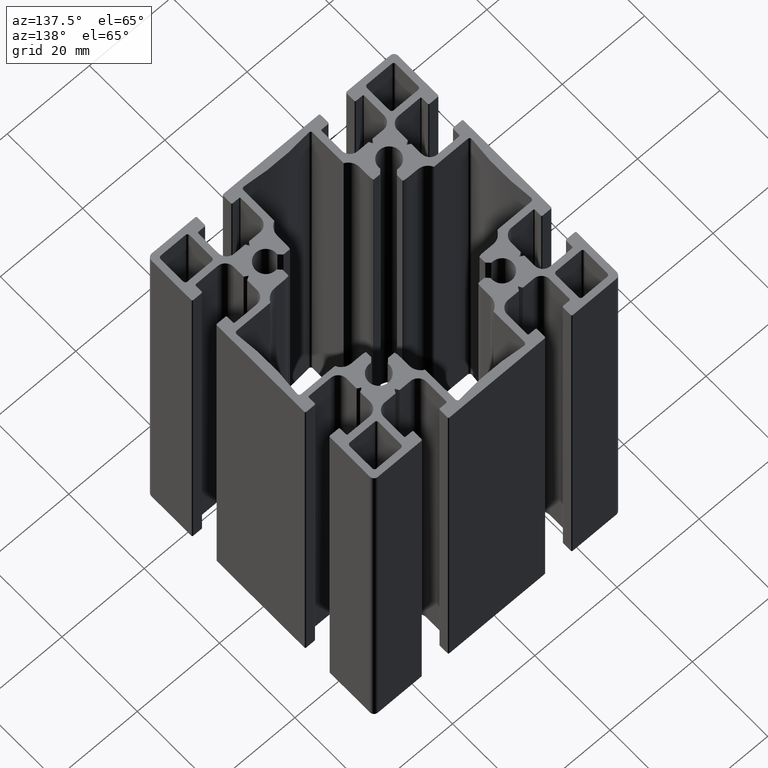
[diagram: clean part render]
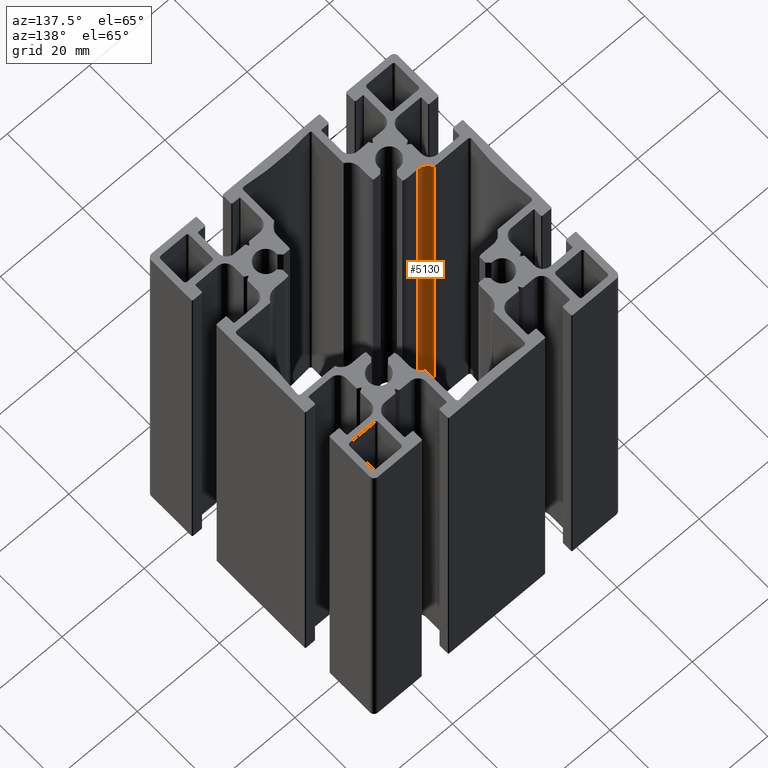
[diagram: same view with one face highlighted and labeled with its STEP entity id]
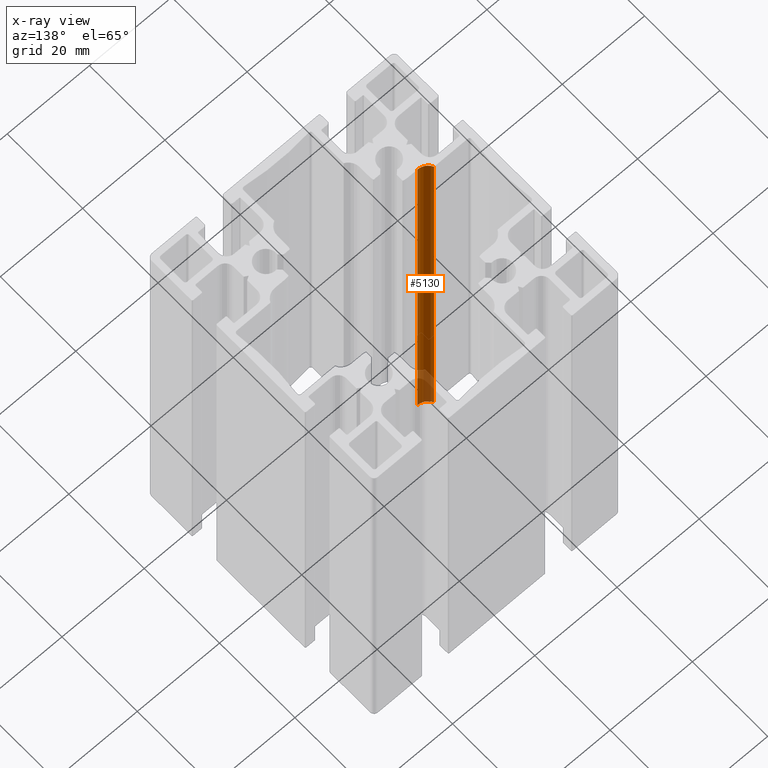
[diagram: x-ray of the same camera — body ghosted, the highlighted face saturated]
A machine part, auxiliary view. The second image highlights one B-rep face of the part: STEP entity #5130.
The next image is the same camera in x-ray: the body ghosted, the highlighted face saturated — about 13% of this face is hidden behind the body in this view.
In plain terms, the highlighted cylindrical surface (edge-blend (fillet) strip) has radius 2.8094 mm, axis along (0, 0, 1).
Its self-contained STEP definition (entity closure, byte-faithful):
#117=CIRCLE('',#5466,2.80936446000002);
#254=CIRCLE('',#5607,2.80936446000002);
#302=CYLINDRICAL_SURFACE('',#5667,2.80936446000002);
#454=FACE_OUTER_BOUND('',#730,.T.);
#730=EDGE_LOOP('',(#4095,#4096,#4097,#4098));
#1275=LINE('',#8620,#1819);
#1276=LINE('',#8622,#1820);
#1819=VECTOR('',#6824,10.);
#1820=VECTOR('',#6827,10.);
#2254=VERTEX_POINT('',#7923);
#2255=VERTEX_POINT('',#7925);
#2518=VERTEX_POINT('',#8467);
#2519=VERTEX_POINT('',#8469);
#2789=EDGE_CURVE('',#2254,#2255,#117,.T.);
#3065=EDGE_CURVE('',#2518,#2519,#254,.T.);
#3139=EDGE_CURVE('',#2519,#2254,#1275,.T.);
#3140=EDGE_CURVE('',#2518,#2255,#1276,.T.);
#4095=ORIENTED_EDGE('',*,*,#3065,.F.);
#4096=ORIENTED_EDGE('',*,*,#3140,.T.);
#4097=ORIENTED_EDGE('',*,*,#2789,.F.);
#4098=ORIENTED_EDGE('',*,*,#3139,.F.);
#5130=ADVANCED_FACE('',(#454),#302,.F.);
#5466=AXIS2_PLACEMENT_3D('',#7926,#6228,#6229);
#5607=AXIS2_PLACEMENT_3D('',#8470,#6649,#6650);
#5667=AXIS2_PLACEMENT_3D('',#8621,#6825,#6826);
#6228=DIRECTION('center_axis',(0.,0.,-1.));
#6229=DIRECTION('ref_axis',(-0.903507902905424,-0.428571428571065,0.));
#6649=DIRECTION('center_axis',(0.,0.,1.));
#6650=DIRECTION('ref_axis',(-0.903507902905424,-0.428571428571065,0.));
#6824=DIRECTION('',(0.,0.,1.));
#6825=DIRECTION('center_axis',(0.,0.,1.));
#6826=DIRECTION('ref_axis',(-0.903507902905424,-0.428571428571065,0.));
#6827=DIRECTION('',(0.,0.,1.));
#7923=CARTESIAN_POINT('',(-17.3593181681444,-10.0449801919247,100.));
#7925=CARTESIAN_POINT('',(-19.8976011598961,-8.43962907192366,100.));
#7926=CARTESIAN_POINT('Origin',(-17.3593181681444,-7.23561573192467,100.));
#8467=CARTESIAN_POINT('',(-19.8976011598961,-8.43962907192366,0.));
#8469=CARTESIAN_POINT('',(-17.3593181681444,-10.0449801919247,0.));
#8470=CARTESIAN_POINT('Origin',(-17.3593181681444,-7.23561573192467,0.));
#8620=CARTESIAN_POINT('',(-17.3593181681444,-10.0449801919247,0.));
#8621=CARTESIAN_POINT('Origin',(-17.3593181681444,-7.23561573192467,0.));
#8622=CARTESIAN_POINT('',(-19.8976011598961,-8.43962907192366,0.));